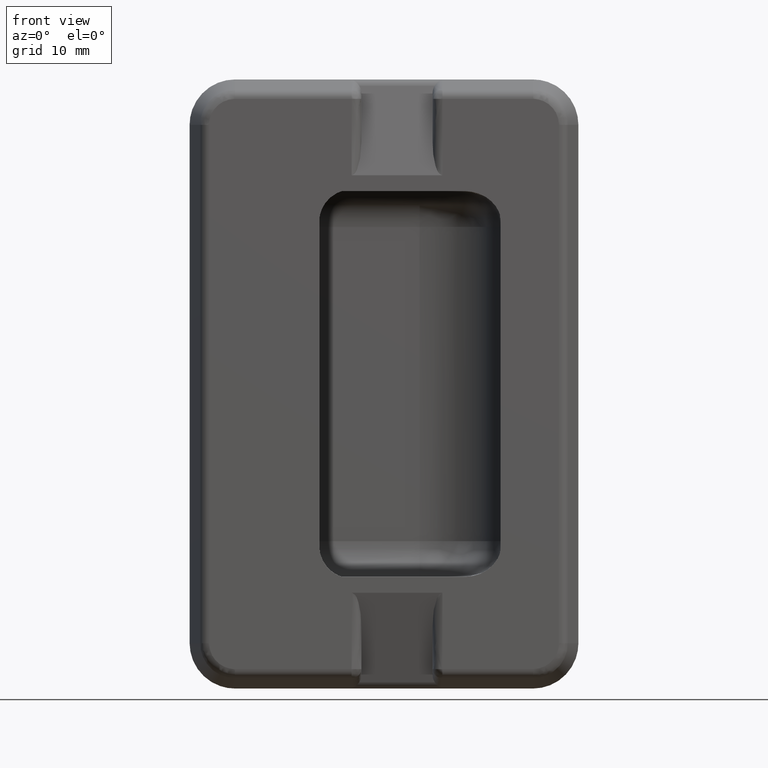
[diagram: clean part render]
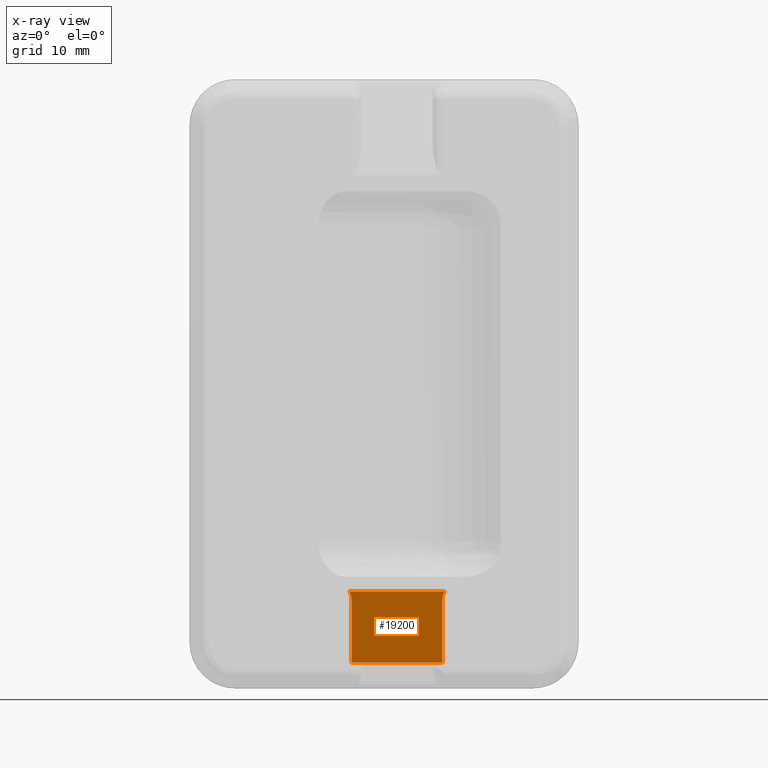
[diagram: x-ray — body ghosted, one internal face saturated and labeled with its STEP entity id]
A machine part, front view, then the same camera in x-ray: the body is ghosted and one INTERNAL B-rep face — a face not visible from any outside direction — is saturated and labeled: STEP entity #19200.
In plain terms, the highlighted face is a freeform B-spline surface patch.
Its self-contained STEP definition (entity closure, byte-faithful):
#6735=CARTESIAN_POINT('',(39.0,-0.753238623199489,-43.045725710978601));
#6736=VERTEX_POINT('',#6735);
#6742=CARTESIAN_POINT('',(25.0,-0.753238623199490,-43.045725710978601));
#6743=VERTEX_POINT('',#6742);
#6744=CARTESIAN_POINT('',(39.0,-0.753238623199489,-43.045725710978601));
#6745=CARTESIAN_POINT('',(25.0,-0.753238623199490,-43.045725710978601));
#6746=QUASI_UNIFORM_CURVE('',1,(#6744,#6745),.UNSPECIFIED.,.F.,.U.);
#6747=EDGE_CURVE('',#6736,#6743,#6746,.T.);
#6865=CARTESIAN_POINT('',(39.500000000000000,-4.0,-32.0));
#6866=VERTEX_POINT('',#6865);
#6872=CARTESIAN_POINT('',(39.0,-3.500000000000000,-33.701037499999899));
#6873=VERTEX_POINT('',#6872);
#6874=CARTESIAN_POINT('',(39.0,-3.500000000000000,-33.701037499999899));
#6875=CARTESIAN_POINT('',(39.0,-4.000000000000001,-31.999999999999893));
#6876=CARTESIAN_POINT('',(39.500000000000000,-4.000000000000001,-31.999999999999890));
#6884=(BOUNDED_CURVE()B_SPLINE_CURVE(2,(#6874,#6875,#6876),.UNSPECIFIED.,.F.,.U.)CURVE()GEOMETRIC_REPRESENTATION_ITEM()QUASI_UNIFORM_CURVE()RATIONAL_B_SPLINE_CURVE((1.0,0.707106781186548,1.0))REPRESENTATION_ITEM(''));
#6885=EDGE_CURVE('',#6873,#6866,#6884,.T.);
#6910=CARTESIAN_POINT('',(25.0,-3.500000000000000,-33.701037499999899));
#6911=VERTEX_POINT('',#6910);
#6917=CARTESIAN_POINT('',(24.500000000000000,-4.0,-32.0));
#6918=VERTEX_POINT('',#6917);
#6919=CARTESIAN_POINT('',(24.500000000000000,-4.0,-32.0));
#6920=CARTESIAN_POINT('',(25.0,-3.999999824792536,-32.000000596068837));
#6921=CARTESIAN_POINT('',(25.0,-3.500000000000000,-33.701037499999899));
#6929=(BOUNDED_CURVE()B_SPLINE_CURVE(2,(#6919,#6920,#6921),.UNSPECIFIED.,.F.,.U.)CURVE()GEOMETRIC_REPRESENTATION_ITEM()QUASI_UNIFORM_CURVE()RATIONAL_B_SPLINE_CURVE((1.0,0.707106905076944,1.0))REPRESENTATION_ITEM(''));
#6930=EDGE_CURVE('',#6918,#6911,#6929,.T.);
#19160=CARTESIAN_POINT('',(39.0,-3.500000000000000,-33.701037499999899));
#19161=CARTESIAN_POINT('',(39.0,-0.753238623199489,-43.045725710978601));
#19162=QUASI_UNIFORM_CURVE('',1,(#19160,#19161),.UNSPECIFIED.,.F.,.U.);
#19163=EDGE_CURVE('',#6873,#6736,#19162,.T.);
#19175=CARTESIAN_POINT('',(25.0,-3.500000000000000,-33.701037499999899));
#19176=CARTESIAN_POINT('',(25.0,-0.753238623199490,-43.045725710978601));
#19177=QUASI_UNIFORM_CURVE('',1,(#19175,#19176),.UNSPECIFIED.,.F.,.U.);
#19178=EDGE_CURVE('',#6911,#6743,#19177,.T.);
#19183=CARTESIAN_POINT('',(23.750750029072911,-4.162175736078042,-31.448265982682290));
#19184=CARTESIAN_POINT('',(23.750750029072911,-0.591062567810065,-43.597460814617627));
#19185=CARTESIAN_POINT('',(40.249250373258441,-4.162175736078042,-31.448265982682290));
#19186=CARTESIAN_POINT('',(40.249250373258441,-0.591062567810065,-43.597460814617627));
#19187=B_SPLINE_SURFACE_WITH_KNOTS('',1,1,((#19183,#19185),(#19184,#19186)),.UNSPECIFIED.,.F.,.F.,.U.,(2,2),(2,2),(0.0,12.663166441490910),(0.0,16.498500344185530),.UNSPECIFIED.);
#19188=ORIENTED_EDGE('',*,*,#6747,.F.);
#19189=ORIENTED_EDGE('',*,*,#19163,.F.);
#19190=ORIENTED_EDGE('',*,*,#6885,.T.);
#19191=CARTESIAN_POINT('',(24.500000000000000,-4.0,-32.0));
#19192=CARTESIAN_POINT('',(39.500000000000000,-4.0,-32.0));
#19193=QUASI_UNIFORM_CURVE('',1,(#19191,#19192),.UNSPECIFIED.,.F.,.U.);
#19194=EDGE_CURVE('',#6918,#6866,#19193,.T.);
#19195=ORIENTED_EDGE('',*,*,#19194,.F.);
#19196=ORIENTED_EDGE('',*,*,#6930,.T.);
#19197=ORIENTED_EDGE('',*,*,#19178,.T.);
#19198=EDGE_LOOP('',(#19188,#19189,#19190,#19195,#19196,#19197));
#19199=FACE_OUTER_BOUND('',#19198,.T.);
#19200=ADVANCED_FACE('',(#19199),#19187,.T.);